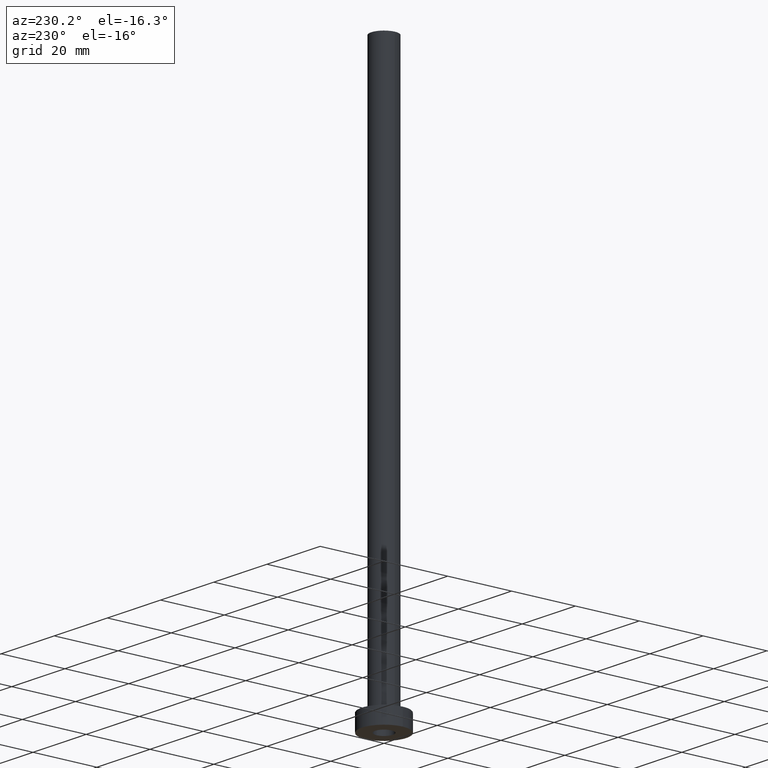
[diagram: clean part render]
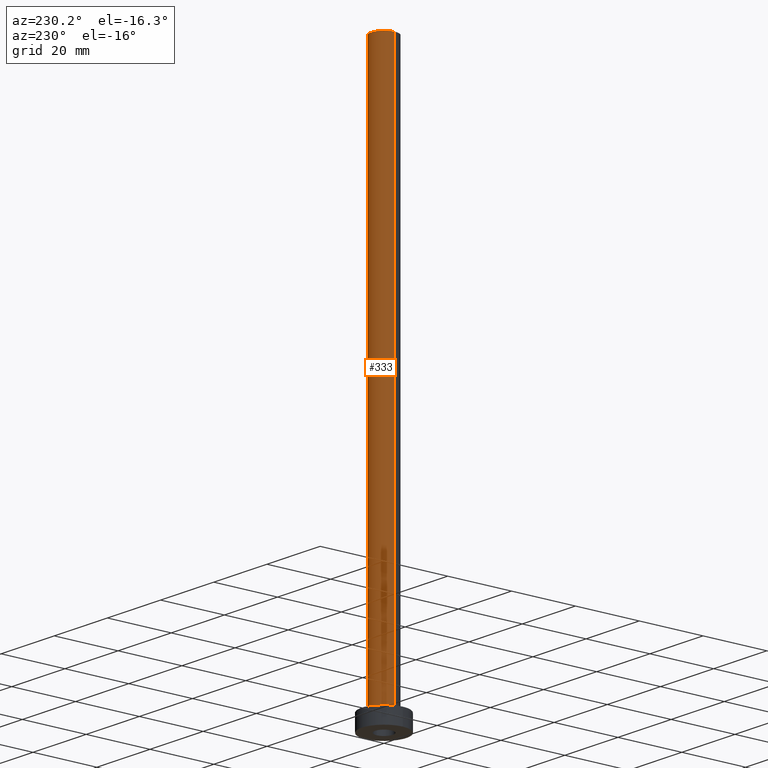
[diagram: same view with one face highlighted and labeled with its STEP entity id]
A machine part, auxiliary view. The second image highlights one B-rep face of the part: STEP entity #333.
In plain terms, the highlighted cylindrical surface (edge-blend (fillet) strip) has radius 4 mm, axis along (-0, -0, -1).
Its self-contained STEP definition (entity closure, byte-faithful):
#4 = CARTESIAN_POINT ( 'NONE',  ( 4.000000000000000000, 4.898587196589412829E-16, 175.0000000000000284 ) ) ;
#12 = VECTOR ( 'NONE', #369, 1000.000000000000000 ) ;
#36 = DIRECTION ( 'NONE',  ( 0.000000000000000000, 0.000000000000000000, 1.000000000000000000 ) ) ;
#37 = VERTEX_POINT ( 'NONE', #139 ) ;
#51 = EDGE_CURVE ( 'NONE', #225, #85, #231, .T. ) ;
#52 = DIRECTION ( 'NONE',  ( -0.000000000000000000, -0.000000000000000000, -1.000000000000000000 ) ) ;
#53 = CARTESIAN_POINT ( 'NONE',  ( -4.000000000000000000, 0.000000000000000000, 175.0000000000000284 ) ) ;
#76 = ORIENTED_EDGE ( 'NONE', *, *, #224, .T. ) ;
#82 = DIRECTION ( 'NONE',  ( -0.000000000000000000, -0.000000000000000000, -1.000000000000000000 ) ) ;
#85 = VERTEX_POINT ( 'NONE', #408 ) ;
#111 = CARTESIAN_POINT ( 'NONE',  ( 4.000000000000000000, 4.898587196589412829E-16, 5.500000000000005329 ) ) ;
#120 = CARTESIAN_POINT ( 'NONE',  ( 0.000000000000000000, 0.000000000000000000, 175.0000000000000284 ) ) ;
#122 = CIRCLE ( 'NONE', #362, 4.000000000000000000 ) ;
#127 = DIRECTION ( 'NONE',  ( -1.000000000000000000, 0.000000000000000000, 0.000000000000000000 ) ) ;
#129 = FACE_OUTER_BOUND ( 'NONE', #396, .T. ) ;
#139 = CARTESIAN_POINT ( 'NONE',  ( 4.000000000000000000, 4.898587196589412829E-16, 175.0000000000000284 ) ) ;
#148 = CARTESIAN_POINT ( 'NONE',  ( 0.000000000000000000, 0.000000000000000000, 5.500000000000005329 ) ) ;
#154 = CARTESIAN_POINT ( 'NONE',  ( 0.000000000000000000, 0.000000000000000000, 175.0000000000000284 ) ) ;
#163 = CIRCLE ( 'NONE', #240, 4.000000000000000000 ) ;
#182 = ORIENTED_EDGE ( 'NONE', *, *, #428, .F. ) ;
#183 = CARTESIAN_POINT ( 'NONE',  ( -4.000000000000000000, 0.000000000000000000, 175.0000000000000284 ) ) ;
#185 = EDGE_CURVE ( 'NONE', #201, #85, #163, .T. ) ;
#201 = VERTEX_POINT ( 'NONE', #111 ) ;
#224 = EDGE_CURVE ( 'NONE', #37, #201, #354, .T. ) ;
#225 = VERTEX_POINT ( 'NONE', #183 ) ;
#230 = VECTOR ( 'NONE', #82, 1000.000000000000000 ) ;
#231 = LINE ( 'NONE', #53, #12 ) ;
#240 = AXIS2_PLACEMENT_3D ( 'NONE', #148, #36, #363 ) ;
#266 = DIRECTION ( 'NONE',  ( 0.000000000000000000, 0.000000000000000000, 1.000000000000000000 ) ) ;
#333 = ADVANCED_FACE ( 'NONE', ( #129 ), #334, .T. ) ;
#334 = CYLINDRICAL_SURFACE ( 'NONE', #413, 4.000000000000000000 ) ;
#354 = LINE ( 'NONE', #4, #230 ) ;
#355 = ORIENTED_EDGE ( 'NONE', *, *, #51, .F. ) ;
#362 = AXIS2_PLACEMENT_3D ( 'NONE', #120, #266, #370 ) ;
#363 = DIRECTION ( 'NONE',  ( 1.000000000000000000, 0.000000000000000000, 0.000000000000000000 ) ) ;
#369 = DIRECTION ( 'NONE',  ( -0.000000000000000000, -0.000000000000000000, -1.000000000000000000 ) ) ;
#370 = DIRECTION ( 'NONE',  ( 1.000000000000000000, 0.000000000000000000, 0.000000000000000000 ) ) ;
#396 = EDGE_LOOP ( 'NONE', ( #182, #76, #461, #355 ) ) ;
#408 = CARTESIAN_POINT ( 'NONE',  ( -4.000000000000000000, 0.000000000000000000, 5.500000000000005329 ) ) ;
#413 = AXIS2_PLACEMENT_3D ( 'NONE', #154, #52, #127 ) ;
#428 = EDGE_CURVE ( 'NONE', #37, #225, #122, .T. ) ;
#461 = ORIENTED_EDGE ( 'NONE', *, *, #185, .T. ) ;